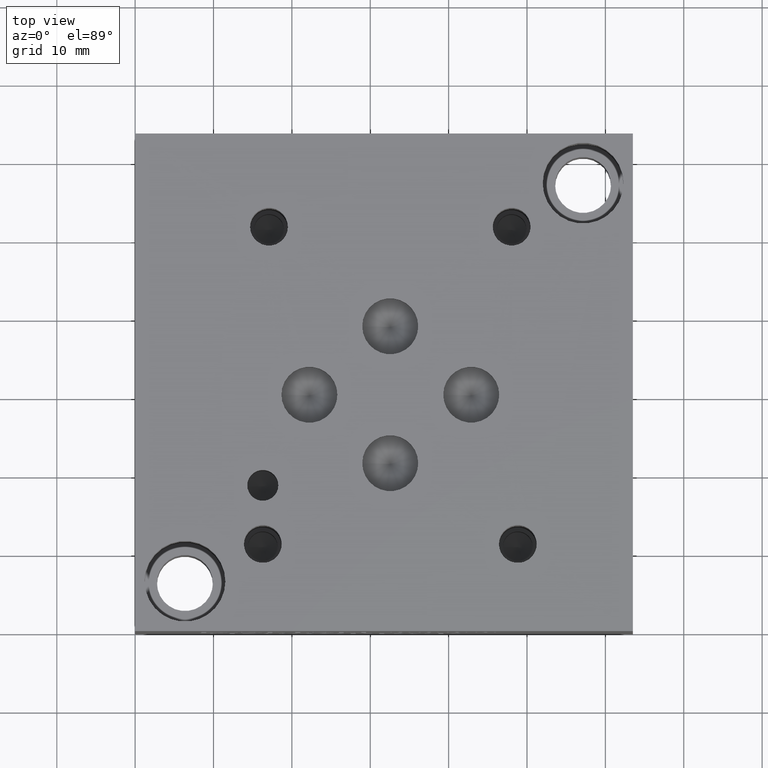
[diagram: clean part render]
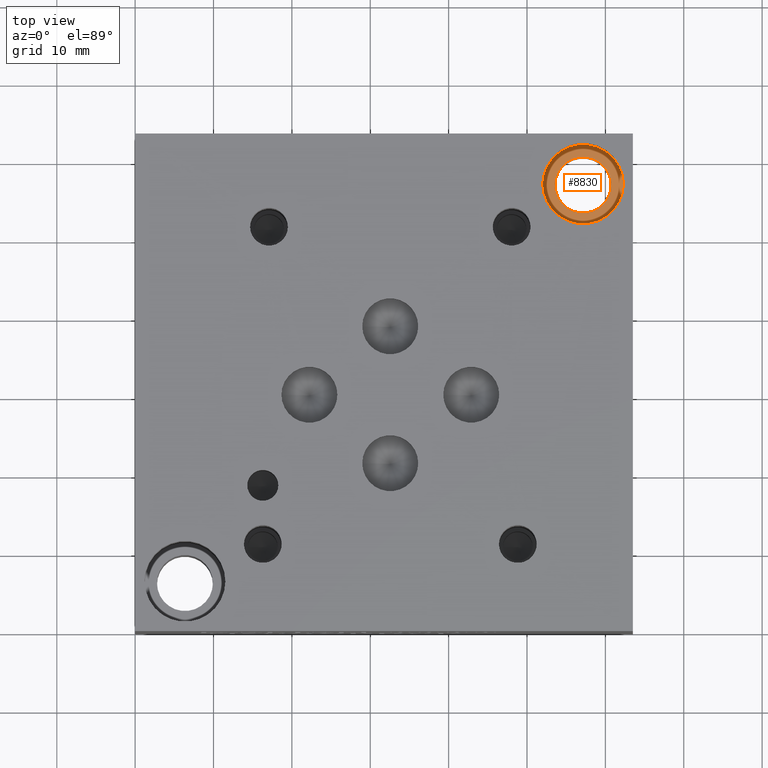
[diagram: same view with one face highlighted and labeled with its STEP entity id]
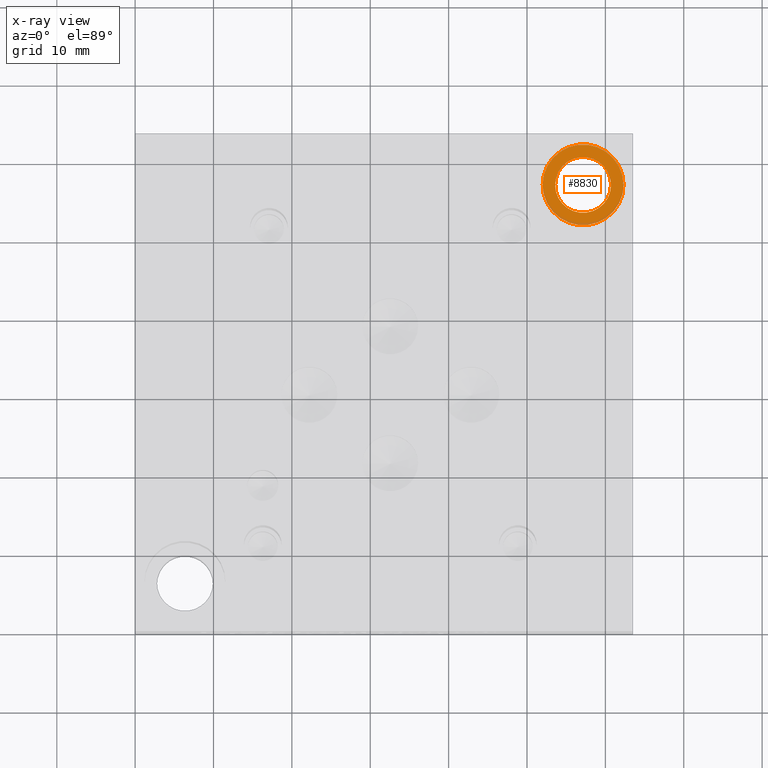
[diagram: x-ray of the same camera — body ghosted, the highlighted face saturated]
A machine part, top view. The second image highlights one B-rep face of the part: STEP entity #8830.
The next image is the same camera in x-ray: the body ghosted, the highlighted face saturated — about 5% of this face is hidden behind the body in this view.
In plain terms, the highlighted planar face has unit normal (0, 0, 1).
Its self-contained STEP definition (entity closure, byte-faithful):
#130=CIRCLE('',#9237,5.1562);
#131=CIRCLE('',#9238,5.1562);
#132=CIRCLE('',#9239,3.5687);
#190=FACE_BOUND('',#1414,.T.);
#471=PLANE('',#9236);
#915=FACE_OUTER_BOUND('',#1413,.T.);
#1413=EDGE_LOOP('',(#7805,#7806));
#1414=EDGE_LOOP('',(#7807));
#4231=VERTEX_POINT('',#15106);
#4232=VERTEX_POINT('',#15107);
#4233=VERTEX_POINT('',#15110);
#5436=EDGE_CURVE('',#4231,#4232,#130,.T.);
#5437=EDGE_CURVE('',#4232,#4231,#131,.T.);
#5438=EDGE_CURVE('',#4233,#4233,#132,.T.);
#7805=ORIENTED_EDGE('',*,*,#5436,.T.);
#7806=ORIENTED_EDGE('',*,*,#5437,.T.);
#7807=ORIENTED_EDGE('',*,*,#5438,.F.);
#8830=ADVANCED_FACE('',(#915,#190),#471,.T.);
#9236=AXIS2_PLACEMENT_3D('',#15105,#10867,#10868);
#9237=AXIS2_PLACEMENT_3D('',#15108,#10869,#10870);
#9238=AXIS2_PLACEMENT_3D('',#15109,#10871,#10872);
#9239=AXIS2_PLACEMENT_3D('',#15111,#10873,#10874);
#10867=DIRECTION('center_axis',(0.,0.,1.));
#10868=DIRECTION('ref_axis',(1.,0.,0.));
#10869=DIRECTION('center_axis',(0.,0.,1.));
#10870=DIRECTION('ref_axis',(1.,0.,0.));
#10871=DIRECTION('center_axis',(0.,0.,1.));
#10872=DIRECTION('ref_axis',(1.,0.,0.));
#10873=DIRECTION('center_axis',(0.,0.,1.));
#10874=DIRECTION('ref_axis',(1.,0.,0.));
#15105=CARTESIAN_POINT('Origin',(57.15,57.15,12.7));
#15106=CARTESIAN_POINT('',(62.3062,57.15,12.7));
#15107=CARTESIAN_POINT('',(51.9938,57.15,12.7));
#15108=CARTESIAN_POINT('Origin',(57.15,57.15,12.7));
#15109=CARTESIAN_POINT('Origin',(57.15,57.15,12.7));
#15110=CARTESIAN_POINT('',(53.5813,57.15,12.7));
#15111=CARTESIAN_POINT('Origin',(57.15,57.15,12.7));